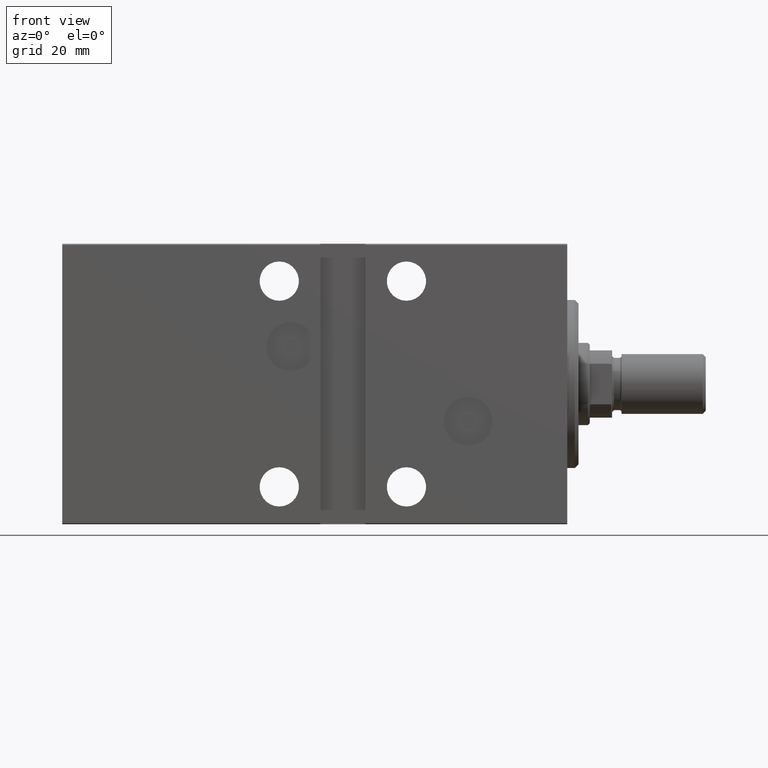
[diagram: clean part render]
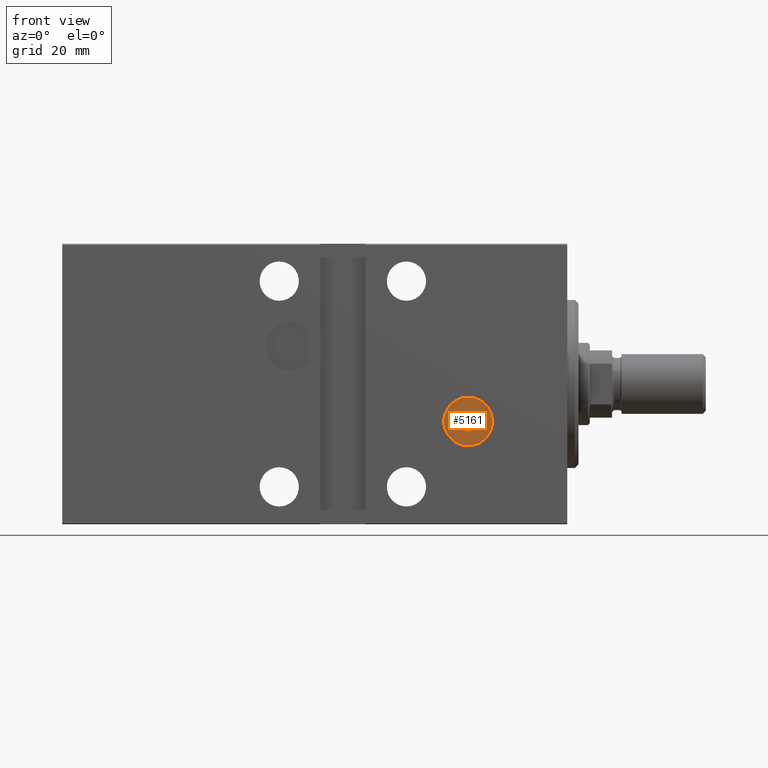
[diagram: same view with one face highlighted and labeled with its STEP entity id]
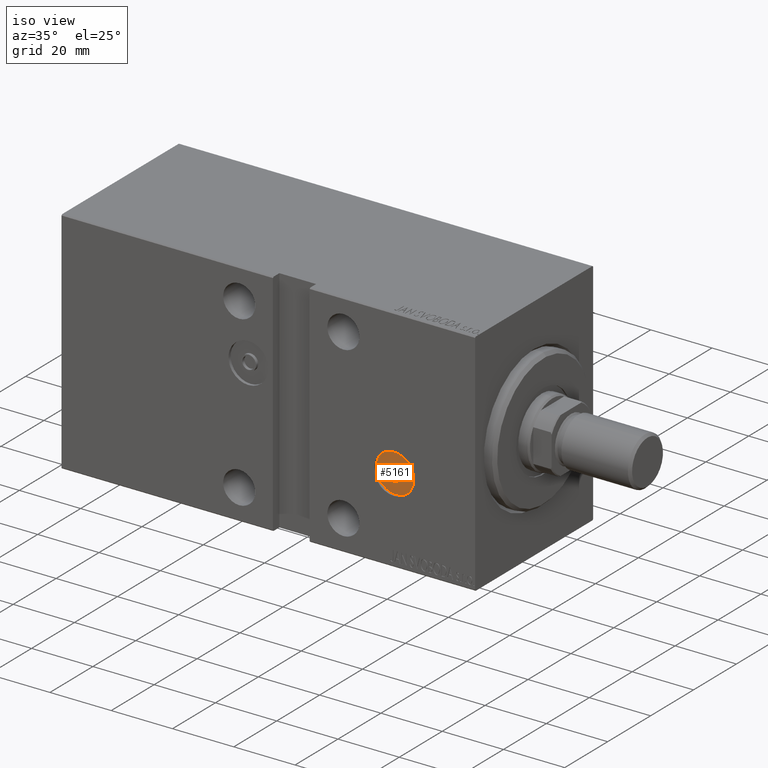
[diagram: same view with one face highlighted and labeled with its STEP entity id]
A machine part, front view. The second image highlights one B-rep face of the part: STEP entity #5161.
A second angle (iso view) of the same face is appended — the face is thin or edge-on in the first view.
In plain terms, the highlighted planar face has unit normal (0, -1, 0).
Its self-contained STEP definition (entity closure, byte-faithful):
#1583 = VERTEX_POINT ( 'NONE', #12046 ) ;
#2139 = ORIENTED_EDGE ( 'NONE', *, *, #22718, .T. ) ;
#2163 = AXIS2_PLACEMENT_3D ( 'NONE', #36145, #15815, #36811 ) ;
#2443 = CIRCLE ( 'NONE', #7451, 6.500000000000005329 ) ;
#2809 = EDGE_LOOP ( 'NONE', ( #2139, #13364 ) ) ;
#3275 = DIRECTION ( 'NONE',  ( 0.000000000000000000, 1.000000000000000000, 1.067522139062650425E-16 ) ) ;
#4447 = CARTESIAN_POINT ( 'NONE',  ( 26.50000000000000000, 26.50000000000000000, -16.50000000000000711 ) ) ;
#5161 = ADVANCED_FACE ( 'NONE', ( #22526, #25871 ), #12461, .T. ) ;
#5243 = CARTESIAN_POINT ( 'NONE',  ( 26.50000000000000000, 26.50000000000000000, -10.00000000000000000 ) ) ;
#7451 = AXIS2_PLACEMENT_3D ( 'NONE', #42239, #21691, #14968 ) ;
#7634 = AXIS2_PLACEMENT_3D ( 'NONE', #20735, #3275, #23856 ) ;
#9707 = DIRECTION ( 'NONE',  ( 0.000000000000000000, 1.000000000000000000, 1.067522139062650425E-16 ) ) ;
#11249 = DIRECTION ( 'NONE',  ( 0.000000000000000000, 0.000000000000000000, 1.000000000000000000 ) ) ;
#12046 = CARTESIAN_POINT ( 'NONE',  ( 26.50000000000000000, 26.50000000000000000, -12.49999999999999822 ) ) ;
#12461 = PLANE ( 'NONE',  #2163 ) ;
#13057 = CARTESIAN_POINT ( 'NONE',  ( 26.50000000000000000, 26.50000000000000000, -10.00000000000000000 ) ) ;
#13364 = ORIENTED_EDGE ( 'NONE', *, *, #20406, .T. ) ;
#13823 = AXIS2_PLACEMENT_3D ( 'NONE', #5243, #15523, #16189 ) ;
#14968 = DIRECTION ( 'NONE',  ( 0.000000000000000000, 0.000000000000000000, 1.000000000000000000 ) ) ;
#15523 = DIRECTION ( 'NONE',  ( 0.000000000000000000, 1.000000000000000000, 1.067522139062650425E-16 ) ) ;
#15815 = DIRECTION ( 'NONE',  ( 0.000000000000000000, 1.000000000000000000, 1.067522139062650425E-16 ) ) ;
#16189 = DIRECTION ( 'NONE',  ( 0.000000000000000000, 0.000000000000000000, 1.000000000000000000 ) ) ;
#17081 = EDGE_CURVE ( 'NONE', #40859, #1583, #33784, .T. ) ;
#20406 = EDGE_CURVE ( 'NONE', #24755, #40629, #2443, .T. ) ;
#20735 = CARTESIAN_POINT ( 'NONE',  ( 26.50000000000000000, 26.50000000000000000, -10.00000000000000000 ) ) ;
#21691 = DIRECTION ( 'NONE',  ( 0.000000000000000000, 1.000000000000000000, 1.067522139062650425E-16 ) ) ;
#22110 = ORIENTED_EDGE ( 'NONE', *, *, #17081, .F. ) ;
#22526 = FACE_BOUND ( 'NONE', #31020, .T. ) ;
#22718 = EDGE_CURVE ( 'NONE', #40629, #24755, #29725, .T. ) ;
#23856 = DIRECTION ( 'NONE',  ( 0.000000000000000000, 0.000000000000000000, 1.000000000000000000 ) ) ;
#24755 = VERTEX_POINT ( 'NONE', #4447 ) ;
#25871 = FACE_OUTER_BOUND ( 'NONE', #2809, .T. ) ;
#28472 = AXIS2_PLACEMENT_3D ( 'NONE', #13057, #9707, #11249 ) ;
#29725 = CIRCLE ( 'NONE', #7634, 6.500000000000005329 ) ;
#31020 = EDGE_LOOP ( 'NONE', ( #38751, #22110 ) ) ;
#33784 = CIRCLE ( 'NONE', #13823, 2.499999999999998668 ) ;
#34423 = EDGE_CURVE ( 'NONE', #1583, #40859, #40639, .T. ) ;
#34482 = CARTESIAN_POINT ( 'NONE',  ( 26.50000000000000000, 26.50000000000000000, -7.500000000000001776 ) ) ;
#36145 = CARTESIAN_POINT ( 'NONE',  ( 26.50000000000000000, 26.50000000000000000, -10.00000000000000000 ) ) ;
#36811 = DIRECTION ( 'NONE',  ( 0.000000000000000000, -1.067522139062650425E-16, 1.000000000000000000 ) ) ;
#38587 = CARTESIAN_POINT ( 'NONE',  ( 26.50000000000000000, 26.50000000000000000, -3.499999999999995115 ) ) ;
#38751 = ORIENTED_EDGE ( 'NONE', *, *, #34423, .F. ) ;
#40629 = VERTEX_POINT ( 'NONE', #38587 ) ;
#40639 = CIRCLE ( 'NONE', #28472, 2.499999999999998668 ) ;
#40859 = VERTEX_POINT ( 'NONE', #34482 ) ;
#42239 = CARTESIAN_POINT ( 'NONE',  ( 26.50000000000000000, 26.50000000000000000, -10.00000000000000000 ) ) ;